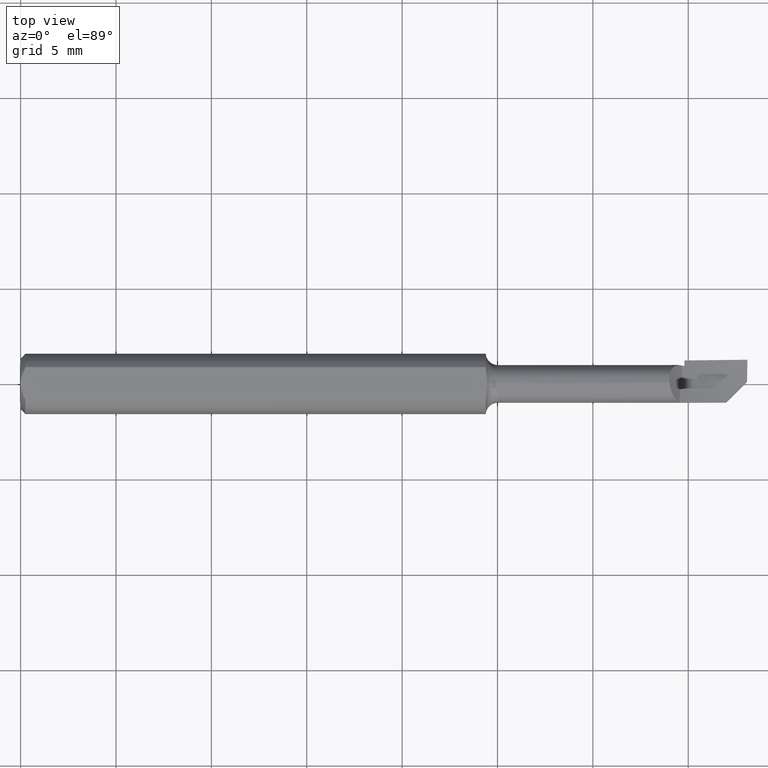
[diagram: clean part render]
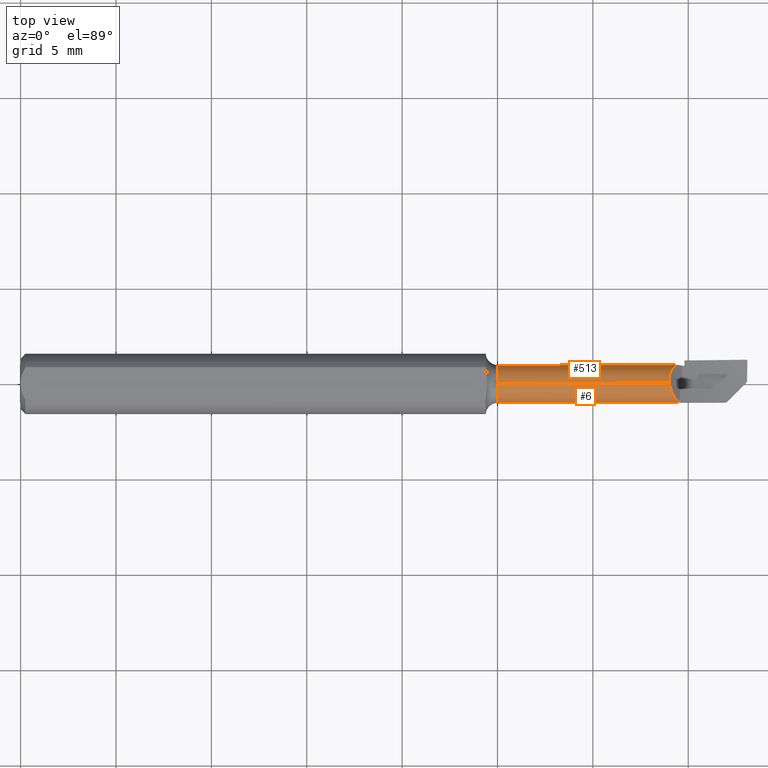
[diagram: same view with one multi-face feature highlighted, each face labeled with its STEP entity id]
A machine part, top view. The highlighted faces form ONE feature: a constant-radius fillet chain: 2 tangent blend faces with common blend radius 0.9906 mm. The faces share edges in the B-rep.
Their STEP definitions:
[1] entity #513 (Cylinder):
#25 = CARTESIAN_POINT ( 'NONE',  ( 1.367625188500449340, 0.03771467856751491848, -0.009931221698997990191 ) ) ;
#43 = EDGE_CURVE ( 'NONE', #69, #353, #779, .T. ) ;
#48 = ORIENTED_EDGE ( 'NONE', *, *, #258, .T. ) ;
#54 = AXIS2_PLACEMENT_3D ( 'NONE', #175, #409, #233 ) ;
#68 = CARTESIAN_POINT ( 'NONE',  ( 1.351412121819423273, 0.03746960626762058100, 0.01164643385784336696 ) ) ;
#69 = VERTEX_POINT ( 'NONE', #757 ) ;
#72 = DIRECTION ( 'NONE',  ( -1.000000000000000000, -0.000000000000000000, -0.000000000000000000 ) ) ;
#85 = CARTESIAN_POINT ( 'NONE',  ( 1.344174711610352846, 0.03089781670961821297, 0.02392558103220153096 ) ) ;
#95 = DIRECTION ( 'NONE',  ( 0.000000000000000000, 0.000000000000000000, 1.000000000000000000 ) ) ;
#103 = EDGE_CURVE ( 'NONE', #361, #723, #793, .T. ) ;
#124 = CARTESIAN_POINT ( 'NONE',  ( 1.348926865319055368, 0.03576396719650012240, 0.01555458269623831609 ) ) ;
#134 = DIRECTION ( 'NONE',  ( 0.000000000000000000, 0.000000000000000000, 1.000000000000000000 ) ) ;
#175 = CARTESIAN_POINT ( 'NONE',  ( 0.000000000000000000, 0.000000000000000000, 0.000000000000000000 ) ) ;
#179 = EDGE_CURVE ( 'NONE', #298, #381, #665, .T. ) ;
#196 = DIRECTION ( 'NONE',  ( -1.000000000000000000, -0.000000000000000000, -0.000000000000000000 ) ) ;
#198 = CARTESIAN_POINT ( 'NONE',  ( 1.347900295454751429, 0.03496707430805499200, 0.01729189934045285981 ) ) ;
#201 = CARTESIAN_POINT ( 'NONE',  ( 1.339000000000000190, 0.01646687223058066266, 0.03535310621348184551 ) ) ;
#205 = CARTESIAN_POINT ( 'NONE',  ( 1.347411736170987862, 0.03453294355683568517, 0.01813481686020786826 ) ) ;
#206 = CARTESIAN_POINT ( 'NONE',  ( 0.9850000000000004308, 0.000000000000000000, 0.000000000000000000 ) ) ;
#207 = VECTOR ( 'NONE', #72, 39.37007874015748143 ) ;
#230 = CARTESIAN_POINT ( 'NONE',  ( 1.339000000000000190, 0.01646687223058066266, 0.03535310621348184551 ) ) ;
#233 = DIRECTION ( 'NONE',  ( 0.000000000000000000, 0.000000000000000000, 1.000000000000000000 ) ) ;
#246 = LINE ( 'NONE', #554, #398 ) ;
#258 = EDGE_CURVE ( 'NONE', #325, #69, #614, .T. ) ;
#261 = CARTESIAN_POINT ( 'NONE',  ( 1.343191034718544286, 0.02934196286333455236, 0.02580159050824371025 ) ) ;
#269 = CARTESIAN_POINT ( 'NONE',  ( 1.370000000000000329, 0.000000000000000000, -0.03900000000000006239 ) ) ;
#273 = CARTESIAN_POINT ( 'NONE',  ( 1.339042338787418629, 0.001491865089979474163, 0.03896531068485474536 ) ) ;
#275 = EDGE_CURVE ( 'NONE', #381, #361, #761, .T. ) ;
#293 = EDGE_CURVE ( 'NONE', #298, #325, #297, .T. ) ;
#297 = B_SPLINE_CURVE_WITH_KNOTS ( 'NONE', 3,
 ( #383, #744, #366, #261, #85, #428, #619, #205, #198, #499, #680, #124, #493, #751, #629, #68, #561, #311, #555 ),
 .UNSPECIFIED., .F., .F.,
 ( 4, 2, 2, 2, 1, 1, 1, 2, 2, 2, 4 ),
 ( 0.000000000000000000, 0.2499999999999069078, 0.3749999999998604450, 0.4374999999998372413, 0.4687499999998256395, 0.4843749999998170908, 0.4921874999998128719, 0.4960937499998079869, 0.4999999999998031019, 0.7499999999999015232, 1.000000000000000000 ),
 .UNSPECIFIED. ) ;
#298 = VERTEX_POINT ( 'NONE', #201 ) ;
#303 = CYLINDRICAL_SURFACE ( 'NONE', #54, 0.03899999999999996525 ) ;
#311 = CARTESIAN_POINT ( 'NONE',  ( 1.360510865957211601, 0.03960228742436500138, -0.002882494986940825274 ) ) ;
#325 = VERTEX_POINT ( 'NONE', #333 ) ;
#333 = CARTESIAN_POINT ( 'NONE',  ( 1.365251084102846013, 0.03767285701591029101, -0.01008741018590872222 ) ) ;
#348 = AXIS2_PLACEMENT_3D ( 'NONE', #762, #637, #134 ) ;
#351 = ORIENTED_EDGE ( 'NONE', *, *, #103, .F. ) ;
#353 = VERTEX_POINT ( 'NONE', #269 ) ;
#361 = VERTEX_POINT ( 'NONE', #764 ) ;
#366 = CARTESIAN_POINT ( 'NONE',  ( 1.340665534529646763, 0.02430523815740874560, 0.03086983686100776628 ) ) ;
#369 = CARTESIAN_POINT ( 'NONE',  ( 0.9850000000000004308, 6.205897654679206802E-18, -0.03899999999999993056 ) ) ;
#371 = CARTESIAN_POINT ( 'NONE',  ( 1.370000000000000329, 0.03775520361511513351, -0.009774691810034038392 ) ) ;
#381 = VERTEX_POINT ( 'NONE', #273 ) ;
#383 = CARTESIAN_POINT ( 'NONE',  ( 1.339000000000000190, 0.01646687223058066266, 0.03535310621348184551 ) ) ;
#398 = VECTOR ( 'NONE', #196, 39.37007874015748143 ) ;
#409 = DIRECTION ( 'NONE',  ( -1.000000000000000000, -0.000000000000000000, -0.000000000000000000 ) ) ;
#410 = ORIENTED_EDGE ( 'NONE', *, *, #759, .T. ) ;
#423 = CARTESIAN_POINT ( 'NONE',  ( 1.339042338787418629, 0.001491865089979474163, 0.03896531068485474536 ) ) ;
#428 = CARTESIAN_POINT ( 'NONE',  ( 1.345862992191330099, 0.03297767658994014278, 0.02085665296773940580 ) ) ;
#429 = ORIENTED_EDGE ( 'NONE', *, *, #275, .F. ) ;
#448 = DIRECTION ( 'NONE',  ( -1.000000000000000000, -0.000000000000000000, -0.000000000000000000 ) ) ;
#485 = CARTESIAN_POINT ( 'NONE',  ( 0.000000000000000000, 0.000000000000000000, 0.03899999999999996525 ) ) ;
#493 = CARTESIAN_POINT ( 'NONE',  ( 1.349014386704047608, 0.03582744251407462416, 0.01540781475054565051 ) ) ;
#499 = CARTESIAN_POINT ( 'NONE',  ( 1.348493552484292035, 0.03544016260105205263, 0.01628412759192764125 ) ) ;
#502 = CARTESIAN_POINT ( 'NONE',  ( 1.365251084102846013, 0.03767285701591029101, -0.01008741018590872222 ) ) ;
#513 = ADVANCED_FACE ( 'NONE', ( #736 ), #303, .T. ) ;
#533 = EDGE_LOOP ( 'NONE', ( #753, #410, #351, #429, #540, #558, #48 ) ) ;
#540 = ORIENTED_EDGE ( 'NONE', *, *, #179, .F. ) ;
#554 = CARTESIAN_POINT ( 'NONE',  ( 0.000000000000000000, 4.776122516674672325E-18, -0.03899999999999996525 ) ) ;
#555 = CARTESIAN_POINT ( 'NONE',  ( 1.365251084102846013, 0.03767285701591029101, -0.01008741018590872222 ) ) ;
#558 = ORIENTED_EDGE ( 'NONE', *, *, #293, .T. ) ;
#561 = CARTESIAN_POINT ( 'NONE',  ( 1.356795036471538207, 0.03910916026878046708, 0.003175594200535508237 ) ) ;
#614 =( BOUNDED_CURVE ( )  B_SPLINE_CURVE ( 2, ( #502, #25, #371 ),
 .UNSPECIFIED., .F., .T. ) 
 B_SPLINE_CURVE_WITH_KNOTS ( ( 3, 3 ),
 ( 0.6991705777441016290, 0.7096974707097923885 ),
 .UNSPECIFIED. ) 
 CURVE ( )  GEOMETRIC_REPRESENTATION_ITEM ( )  RATIONAL_B_SPLINE_CURVE ( ( 0.9796128604871006118, 0.9795315376775903804, 0.9794670570133059417 ) ) 
 REPRESENTATION_ITEM ( '' )  );
#619 = CARTESIAN_POINT ( 'NONE',  ( 1.346461213258866918, 0.03362862905176262213, 0.01979137188550783577 ) ) ;
#629 = CARTESIAN_POINT ( 'NONE',  ( 1.349745036652981733, 0.03634739139639830974, 0.01418561737852167166 ) ) ;
#637 = DIRECTION ( 'NONE',  ( -1.000000000000000000, -0.000000000000000000, -0.000000000000000000 ) ) ;
#657 = CARTESIAN_POINT ( 'NONE',  ( 1.338999999999999524, 0.01156189296940909536, 0.03646964687491954099 ) ) ;
#665 = B_SPLINE_CURVE_WITH_KNOTS ( 'NONE', 3,
 ( #230, #657, #784, #423 ),
 .UNSPECIFIED., .F., .F.,
 ( 4, 4 ),
 ( 0.000000000000000000, 1.000000000000000000 ),
 .UNSPECIFIED. ) ;
#680 = CARTESIAN_POINT ( 'NONE',  ( 1.348795998798683504, 0.03566812942312020535, 0.01577432114154116161 ) ) ;
#723 = VERTEX_POINT ( 'NONE', #369 ) ;
#727 = AXIS2_PLACEMENT_3D ( 'NONE', #206, #448, #95 ) ;
#736 = FACE_OUTER_BOUND ( 'NONE', #533, .T. ) ;
#744 = CARTESIAN_POINT ( 'NONE',  ( 1.339549241719087069, 0.02045947294772371486, 0.03349342609817296257 ) ) ;
#751 = CARTESIAN_POINT ( 'NONE',  ( 1.349092281255423131, 0.03588314950937666198, 0.01527743153944534707 ) ) ;
#753 = ORIENTED_EDGE ( 'NONE', *, *, #43, .T. ) ;
#757 = CARTESIAN_POINT ( 'NONE',  ( 1.370000000000000329, 0.03775520361511513351, -0.009774691810034038392 ) ) ;
#759 = EDGE_CURVE ( 'NONE', #353, #723, #246, .T. ) ;
#761 = LINE ( 'NONE', #485, #207 ) ;
#762 = CARTESIAN_POINT ( 'NONE',  ( 1.370000000000000329, 0.000000000000000000, 0.000000000000000000 ) ) ;
#764 = CARTESIAN_POINT ( 'NONE',  ( 0.9850000000000004308, 0.000000000000000000, 0.03899999999999993056 ) ) ;
#779 = CIRCLE ( 'NONE', #348, 0.03899999999999999994 ) ;
#784 = CARTESIAN_POINT ( 'NONE',  ( 1.338999999999999302, 0.006675536496685242557, 0.03767159069779911496 ) ) ;
#793 = CIRCLE ( 'NONE', #727, 0.03899999999999993056 ) ;
[2] entity #6 (Cylinder):
#6 = ADVANCED_FACE ( 'NONE', ( #634 ), #22, .T. ) ;
#10 = CARTESIAN_POINT ( 'NONE',  ( 1.455543029920441711, -0.03894455628052481688, 0.002078830467602190302 ) ) ;
#22 = CYLINDRICAL_SURFACE ( 'NONE', #112, 0.03899999999999996525 ) ;
#33 = CARTESIAN_POINT ( 'NONE',  ( 1.348942833608258063, -0.02754147477447862688, 0.02762902050987929570 ) ) ;
#65 = ORIENTED_EDGE ( 'NONE', *, *, #316, .T. ) ;
#72 = DIRECTION ( 'NONE',  ( -1.000000000000000000, -0.000000000000000000, -0.000000000000000000 ) ) ;
#74 = CARTESIAN_POINT ( 'NONE',  ( 1.455543029920441711, -0.03894455628052481688, 0.002078830467602190302 ) ) ;
#77 = ORIENTED_EDGE ( 'NONE', *, *, #275, .T. ) ;
#99 = B_SPLINE_CURVE_WITH_KNOTS ( 'NONE', 3,
 ( #778, #102, #345, #585, #105, #33, #450, #595, #522, #223, #461, #506, #388, #210, #718, #165, #401, #654, #526, #704, #464, #147, #729, #472, #801, #412 ),
 .UNSPECIFIED., .F., .F.,
 ( 4, 2, 2, 2, 1, 1, 2, 2, 2, 2, 2, 2, 2, 4 ),
 ( 0.000000000000000000, 0.2500000000000230371, 0.3750000000000375810, 0.4375000000000414113, 0.4687500000000434652, 0.4843750000000484057, 0.4921875000000470179, 0.5000000000000456302, 0.7500000000000264233, 0.8750000000000148770, 0.9375000000000074385, 0.9687500000000037748, 0.9843750000000018874, 1.000000000000000000 ),
 .UNSPECIFIED. ) ;
#102 = CARTESIAN_POINT ( 'NONE',  ( 1.356858497034448385, -0.03682547741979771971, 0.01401220220135346826 ) ) ;
#105 = CARTESIAN_POINT ( 'NONE',  ( 1.350234058151253302, -0.02950298695208067659, 0.02557647726446427711 ) ) ;
#112 = AXIS2_PLACEMENT_3D ( 'NONE', #394, #455, #442 ) ;
#117 = ORIENTED_EDGE ( 'NONE', *, *, #787, .T. ) ;
#140 = CARTESIAN_POINT ( 'NONE',  ( 1.454273148360252899, -0.04021443784071346284, -0.02171097570519750844 ) ) ;
#147 = CARTESIAN_POINT ( 'NONE',  ( 1.339205271438349554, 0.0002329044989316818358, 0.03900015130222530407 ) ) ;
#157 = CARTESIAN_POINT ( 'NONE',  ( 1.407756143416589723, -0.03877000625809923218, 0.005348829285717054439 ) ) ;
#160 = CARTESIAN_POINT ( 'NONE',  ( 0.9850000000000004308, 0.000000000000000000, 0.000000000000000000 ) ) ;
#165 = CARTESIAN_POINT ( 'NONE',  ( 1.341113371731331716, -0.009119071672143682153, 0.03798957849328540859 ) ) ;
#193 = CARTESIAN_POINT ( 'NONE',  ( 1.494487586200966334, -3.414809992080329023E-17, -0.03900000000000006239 ) ) ;
#196 = DIRECTION ( 'NONE',  ( -1.000000000000000000, -0.000000000000000000, -0.000000000000000000 ) ) ;
#203 = ORIENTED_EDGE ( 'NONE', *, *, #446, .T. ) ;
#207 = VECTOR ( 'NONE', #72, 39.37007874015748143 ) ;
#208 = CARTESIAN_POINT ( 'NONE',  ( 1.494487586200966334, -3.414809992080329023E-17, -0.03900000000000006239 ) ) ;
#210 = CARTESIAN_POINT ( 'NONE',  ( 1.344890609958596883, -0.02026134698556149999, 0.03373142848808049349 ) ) ;
#219 = DIRECTION ( 'NONE',  ( -1.000000000000000000, -0.000000000000000000, -0.000000000000000000 ) ) ;
#220 = ORIENTED_EDGE ( 'NONE', *, *, #759, .F. ) ;
#223 = CARTESIAN_POINT ( 'NONE',  ( 1.347379489371238304, -0.02489170957558365163, 0.03002457187349875933 ) ) ;
#226 = CARTESIAN_POINT ( 'NONE',  ( 1.300000000000000044, 0.000000000000000000, -0.03900000000000006239 ) ) ;
#240 = CARTESIAN_POINT ( 'NONE',  ( 1.359695360012820764, -0.03805261051767304392, 0.008543935439261858555 ) ) ;
#246 = LINE ( 'NONE', #554, #398 ) ;
#269 = CARTESIAN_POINT ( 'NONE',  ( 1.370000000000000329, 0.000000000000000000, -0.03900000000000006239 ) ) ;
#273 = CARTESIAN_POINT ( 'NONE',  ( 1.339042338787418629, 0.001491865089979474163, 0.03896531068485474536 ) ) ;
#275 = EDGE_CURVE ( 'NONE', #381, #361, #761, .T. ) ;
#277 = CARTESIAN_POINT ( 'NONE',  ( 1.455543029920441711, -0.03894455628052482382, 0.002078830467602190302 ) ) ;
#316 = EDGE_CURVE ( 'NONE', #353, #785, #656, .T. ) ;
#345 = CARTESIAN_POINT ( 'NONE',  ( 1.354358442597806578, -0.03456806512086416094, 0.01858357244132196121 ) ) ;
#353 = VERTEX_POINT ( 'NONE', #269 ) ;
#361 = VERTEX_POINT ( 'NONE', #764 ) ;
#369 = CARTESIAN_POINT ( 'NONE',  ( 0.9850000000000004308, 6.205897654679206802E-18, -0.03899999999999993056 ) ) ;
#381 = VERTEX_POINT ( 'NONE', #273 ) ;
#388 = CARTESIAN_POINT ( 'NONE',  ( 1.347151203685724719, -0.02447320080248451338, 0.03036592059118142090 ) ) ;
#394 = CARTESIAN_POINT ( 'NONE',  ( 0.000000000000000000, 0.000000000000000000, 0.000000000000000000 ) ) ;
#398 = VECTOR ( 'NONE', #196, 39.37007874015748143 ) ;
#401 = CARTESIAN_POINT ( 'NONE',  ( 1.340549510347256001, -0.006914946583383766582, 0.03844322859648601626 ) ) ;
#402 = EDGE_CURVE ( 'NONE', #723, #361, #580, .T. ) ;
#412 = CARTESIAN_POINT ( 'NONE',  ( 1.339042338787418629, 0.001491865089979474163, 0.03896531068485474536 ) ) ;
#442 = DIRECTION ( 'NONE',  ( 0.000000000000000000, 0.000000000000000000, 1.000000000000000000 ) ) ;
#446 = EDGE_CURVE ( 'NONE', #591, #381, #99, .T. ) ;
#450 = CARTESIAN_POINT ( 'NONE',  ( 1.348536751105779974, -0.02688907384620868590, 0.02826190541918165502 ) ) ;
#455 = DIRECTION ( 'NONE',  ( -1.000000000000000000, -0.000000000000000000, -0.000000000000000000 ) ) ;
#461 = CARTESIAN_POINT ( 'NONE',  ( 1.347251154022602870, -0.02465699655477323823, 0.03021659509673607288 ) ) ;
#464 = CARTESIAN_POINT ( 'NONE',  ( 1.339316934946243709, -0.0005380784399320383835, 0.03899967507558026875 ) ) ;
#471 = VECTOR ( 'NONE', #589, 39.37007874015748143 ) ;
#472 = CARTESIAN_POINT ( 'NONE',  ( 1.339074508445320166, 0.001204188389193796031, 0.03898261444865881720 ) ) ;
#485 = CARTESIAN_POINT ( 'NONE',  ( 0.000000000000000000, 0.000000000000000000, 0.03899999999999996525 ) ) ;
#506 = CARTESIAN_POINT ( 'NONE',  ( 1.347166357300965567, -0.02450095320756931830, 0.03034325938759203228 ) ) ;
#508 = AXIS2_PLACEMENT_3D ( 'NONE', #160, #219, #714 ) ;
#515 = CARTESIAN_POINT ( 'NONE',  ( 1.359695360012820764, -0.03805261051767304392, 0.008543935439261858555 ) ) ;
#522 = CARTESIAN_POINT ( 'NONE',  ( 1.347686920381319542, -0.02544367548812938307, 0.02956214595568886286 ) ) ;
#526 = CARTESIAN_POINT ( 'NONE',  ( 1.339661270405825499, -0.002625293641717244778, 0.03892561057983511680 ) ) ;
#554 = CARTESIAN_POINT ( 'NONE',  ( 0.000000000000000000, 4.776122516674672325E-18, -0.03899999999999996525 ) ) ;
#557 =( BOUNDED_CURVE ( )  B_SPLINE_CURVE ( 3, ( #74, #140, #610, #193 ),
 .UNSPECIFIED., .F., .T. ) 
 B_SPLINE_CURVE_WITH_KNOTS ( ( 4, 4 ),
 ( 6.229856688204215232, 7.853981633974481014 ),
 .UNSPECIFIED. ) 
 CURVE ( )  GEOMETRIC_REPRESENTATION_ITEM ( )  RATIONAL_B_SPLINE_CURVE ( ( 1.000000000000000000, 0.7920020965739071883, 0.7920020965739071883, 1.000000000000000000 ) ) 
 REPRESENTATION_ITEM ( '' )  );
#580 = CIRCLE ( 'NONE', #508, 0.03899999999999993056 ) ;
#582 =( BOUNDED_CURVE ( )  B_SPLINE_CURVE ( 2, ( #277, #157, #515 ),
 .UNSPECIFIED., .F., .F. ) 
 B_SPLINE_CURVE_WITH_KNOTS ( ( 3, 3 ),
 ( 0.1003351680479023650, 0.3131515010944845856 ),
 .UNSPECIFIED. ) 
 CURVE ( )  GEOMETRIC_REPRESENTATION_ITEM ( )  RATIONAL_B_SPLINE_CURVE ( ( 0.9826245589785704837, 0.9777837080203805042, 0.9798263188368094845 ) ) 
 REPRESENTATION_ITEM ( '' )  );
#585 = CARTESIAN_POINT ( 'NONE',  ( 1.351192177227330093, -0.03081763406770086922, 0.02400205206205966932 ) ) ;
#589 = DIRECTION ( 'NONE',  ( 1.000000000000000000, -0.000000000000000000, -0.000000000000000000 ) ) ;
#591 = VERTEX_POINT ( 'NONE', #240 ) ;
#595 = CARTESIAN_POINT ( 'NONE',  ( 1.347964115869842772, -0.02592334728672689506, 0.02914051240128004427 ) ) ;
#610 = CARTESIAN_POINT ( 'NONE',  ( 1.470663911486173259, -0.02382367471479345661, -0.03899999999999993749 ) ) ;
#625 = ORIENTED_EDGE ( 'NONE', *, *, #739, .F. ) ;
#630 = EDGE_LOOP ( 'NONE', ( #220, #65, #625, #117, #203, #77, #673 ) ) ;
#634 = FACE_OUTER_BOUND ( 'NONE', #630, .T. ) ;
#654 = CARTESIAN_POINT ( 'NONE',  ( 1.339863373488956899, -0.003687953146878621569, 0.03884036018601794149 ) ) ;
#656 = LINE ( 'NONE', #226, #471 ) ;
#667 = VERTEX_POINT ( 'NONE', #10 ) ;
#673 = ORIENTED_EDGE ( 'NONE', *, *, #402, .F. ) ;
#704 = CARTESIAN_POINT ( 'NONE',  ( 1.339398029585582961, -0.001056714629475162580, 0.03898919319018289559 ) ) ;
#714 = DIRECTION ( 'NONE',  ( 0.000000000000000000, 0.000000000000000000, 1.000000000000000000 ) ) ;
#718 = CARTESIAN_POINT ( 'NONE',  ( 1.343124266319188020, -0.01576816290547110658, 0.03596980966898884191 ) ) ;
#723 = VERTEX_POINT ( 'NONE', #369 ) ;
#729 = CARTESIAN_POINT ( 'NONE',  ( 1.339155497588196742, 0.0005901883098166081946, 0.03899674315488932397 ) ) ;
#739 = EDGE_CURVE ( 'NONE', #667, #785, #557, .T. ) ;
#759 = EDGE_CURVE ( 'NONE', #353, #723, #246, .T. ) ;
#761 = LINE ( 'NONE', #485, #207 ) ;
#764 = CARTESIAN_POINT ( 'NONE',  ( 0.9850000000000004308, 0.000000000000000000, 0.03899999999999993056 ) ) ;
#778 = CARTESIAN_POINT ( 'NONE',  ( 1.359695360012820764, -0.03805261051767304392, 0.008543935439261858555 ) ) ;
#785 = VERTEX_POINT ( 'NONE', #208 ) ;
#787 = EDGE_CURVE ( 'NONE', #667, #591, #582, .T. ) ;
#801 = CARTESIAN_POINT ( 'NONE',  ( 1.339036257805010566, 0.001509395657258190545, 0.03897196345801322293 ) ) ;